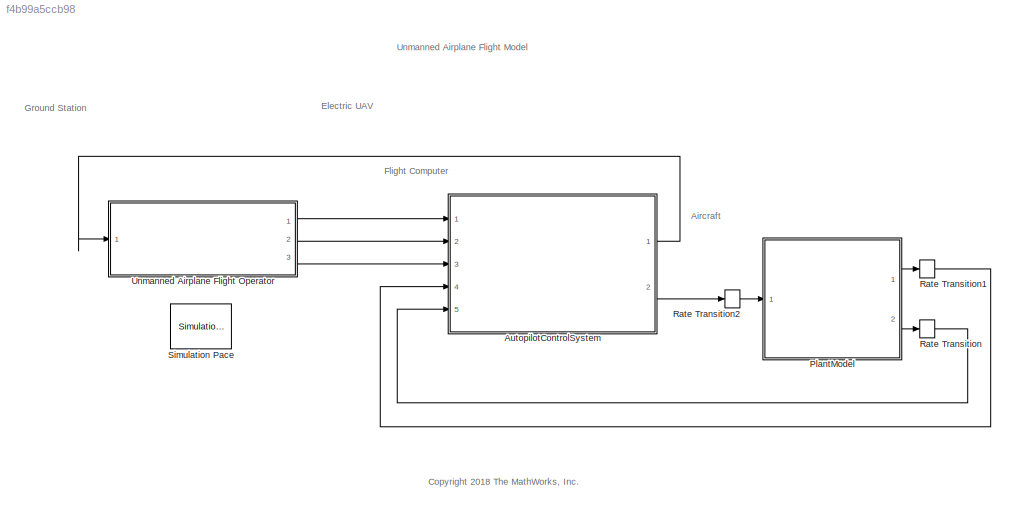
MODEL slx_f4b99a5ccb98
KIND model
CONFIG AbsTol = auto
CONFIG EnableMultiTasking = on
CONFIG FixedStep = uav.sampleTime
CONFIG InitFcn = plantConfigSet = sim_plant_configset;\n
CONFIG MaxStep = auto
CONFIG MinStep = auto
CONFIG RelTol = 1e-3
CONFIG SampleTimeConstraint = Unconstrained
CONFIG Solver = ode45
CONFIG SolverName = ode45
CONFIG StartTime = 0.0
CONFIG StopTime = inf
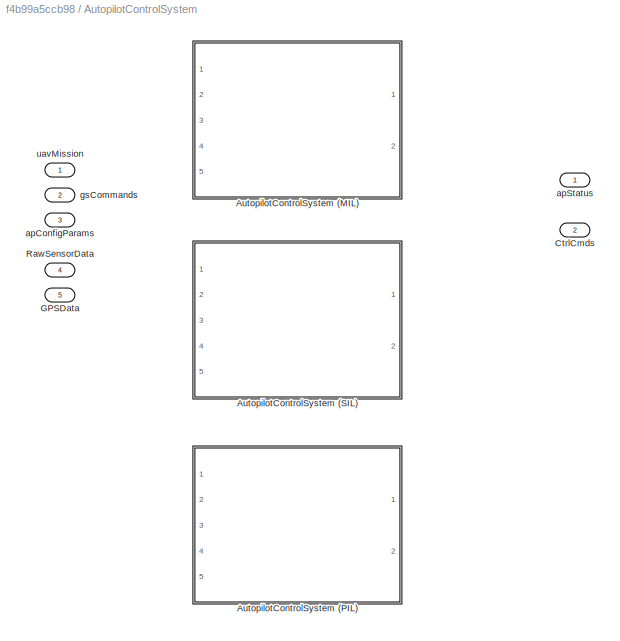
BLOCK [SubSystem] AutopilotControlSystem
  Ports = [5, 2]
  RequestExecContextInheritance = off
  Variant = on
  VariantControl = Variant1
BLOCK [Outport] AutopilotControlSystem/ CtrlCmds
  IconDisplay = Port number
  Port = 2
  VectorParamsAs1DForOutWhenUnconnected = off
BLOCK [Outport] AutopilotControlSystem/ apStatus
  IconDisplay = Port number
  VectorParamsAs1DForOutWhenUnconnected = off
BLOCK [ModelReference] AutopilotControlSystem/AutopilotControlSystem (MIL)
  CodeInterface = Top model
  ModelNameDialog = AutopilotControlSystem
  ModelReferenceVersion = 1.365
  Ports = [5, 2]
  VariantControl = MIL
BLOCK [ModelReference] AutopilotControlSystem/AutopilotControlSystem (PIL)
  CodeInterface = Top model
  ModelNameDialog = AutopilotControlSystem
  ModelReferenceVersion = 1.363
  Ports = [5, 2]
  VariantControl = PIL
BLOCK [ModelReference] AutopilotControlSystem/AutopilotControlSystem (SIL)
  CodeInterface = Top model
  ModelNameDialog = AutopilotControlSystem
  ModelReferenceVersion = 1.363
  Ports = [5, 2]
  VariantControl = SIL
BLOCK [Inport] AutopilotControlSystem/GPSData 
  IconDisplay = Port number
  Port = 5
BLOCK [Inport] AutopilotControlSystem/RawSensorData 
  IconDisplay = Port number
  Port = 4
BLOCK [Inport] AutopilotControlSystem/apConfigParams 
  IconDisplay = Port number
  Port = 3
BLOCK [Inport] AutopilotControlSystem/gsCommands 
  IconDisplay = Port number
  Port = 2
BLOCK [Inport] AutopilotControlSystem/uavMission 
  IconDisplay = Port number
BLOCK [ModelReference] PlantModel
  ModelNameDialog = PlantModel
  ModelReferenceVersion = 1.375
  Ports = [1, 2]
BLOCK [RateTransition] Rate Transition
  OutPortSampleTime = ap.apSampleTime
BLOCK [RateTransition] Rate Transition1
  OutPortSampleTime = ap.apSampleTime
BLOCK [RateTransition] Rate Transition2
BLOCK [Reference] Simulation Pace  REF=aerolibanimutils/Simulation Pace
  AttributesFormatString = %<SleepMode>\n%<SimulationPace> sec/sec
  Ports = []
  SourceBlock = aerolibanimutils/Simulation Pace
  SourceProductBaseCode = AE
  SourceProductName = Aerospace Blockset
  SourceType = Simulation Pace
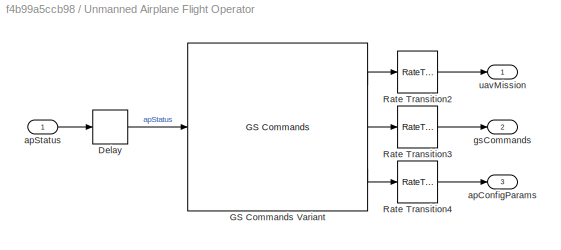
BLOCK [SubSystem] Unmanned Airplane Flight Operator 
  Ports = [1, 3]
  RequestExecContextInheritance = off
BLOCK [Delay] Unmanned Airplane Flight Operator /Delay
  DelayLength = 1
  InputPortMap = u0
  Ports = [1, 1]
BLOCK [Reference] Unmanned Airplane Flight Operator /GS Commands Variant  REF=mbdriLib/Utilities/GS Commands 
  Ports = [1, 3]
  SourceBlock = mbdriLib/Utilities/GS Commands
  SourceProductBaseCode = RO
  SourceProductName = Robotics System Toolbox
  SourceType = SubSystem
BLOCK [RateTransition] Unmanned Airplane Flight Operator /Rate Transition2
  OutPortSampleTime = ap.apSampleTime
BLOCK [RateTransition] Unmanned Airplane Flight Operator /Rate Transition3
  OutPortSampleTime = ap.apSampleTime
BLOCK [RateTransition] Unmanned Airplane Flight Operator /Rate Transition4
  OutPortSampleTime = ap.apSampleTime
BLOCK [Outport] Unmanned Airplane Flight Operator /apConfigParams
  IconDisplay = Port number
  OutDataTypeStr = Bus: apConfigParamsBus
  Port = 3
  VectorParamsAs1DForOutWhenUnconnected = off
BLOCK [Inport] Unmanned Airplane Flight Operator /apStatus
  IconDisplay = Port number
  OutDataTypeStr = Bus: apStatusBus
BLOCK [Outport] Unmanned Airplane Flight Operator /gsCommands
  IconDisplay = Port number
  OutDataTypeStr = Bus: gsCommandsBus
  Port = 2
  VectorParamsAs1DForOutWhenUnconnected = off
BLOCK [Outport] Unmanned Airplane Flight Operator /uavMission
  IconDisplay = Port number
  OutDataTypeStr = Bus: waypoint
  VectorParamsAs1DForOutWhenUnconnected = off
ANNOTATION (root): Unmanned Airplane Flight Model
ANNOTATION (root): Aircraft
ANNOTATION (root): <copyright redacted>
ANNOTATION (root): Electric UAV
ANNOTATION (root): Flight Computer
ANNOTATION (root): Ground Station
LINE AutopilotControlSystem:1 -> Unmanned Airplane Flight Operator :1
LINE AutopilotControlSystem:2 -> Rate Transition2:1
LINE PlantModel:1 -> Rate Transition1:1
LINE PlantModel:2 -> Rate Transition:1
LINE Rate Transition1:1 -> AutopilotControlSystem:4
LINE Rate Transition2:1 -> PlantModel:1
LINE Rate Transition:1 -> AutopilotControlSystem:5
LINE Unmanned Airplane Flight Operator /Delay:1 -> Unmanned Airplane Flight Operator /GS Commands Variant:1
LINE Unmanned Airplane Flight Operator /GS Commands Variant:1 -> Unmanned Airplane Flight Operator /Rate Transition2:1
LINE Unmanned Airplane Flight Operator /GS Commands Variant:2 -> Unmanned Airplane Flight Operator /Rate Transition3:1
LINE Unmanned Airplane Flight Operator /GS Commands Variant:3 -> Unmanned Airplane Flight Operator /Rate Transition4:1
LINE Unmanned Airplane Flight Operator /Rate Transition2:1 -> Unmanned Airplane Flight Operator /uavMission:1
LINE Unmanned Airplane Flight Operator /Rate Transition3:1 -> Unmanned Airplane Flight Operator /gsCommands:1
LINE Unmanned Airplane Flight Operator /Rate Transition4:1 -> Unmanned Airplane Flight Operator /apConfigParams:1
LINE Unmanned Airplane Flight Operator /apStatus:1 -> Unmanned Airplane Flight Operator /Delay:1
LINE Unmanned Airplane Flight Operator :1 -> AutopilotControlSystem:1
LINE Unmanned Airplane Flight Operator :2 -> AutopilotControlSystem:2
LINE Unmanned Airplane Flight Operator :3 -> AutopilotControlSystem:3
